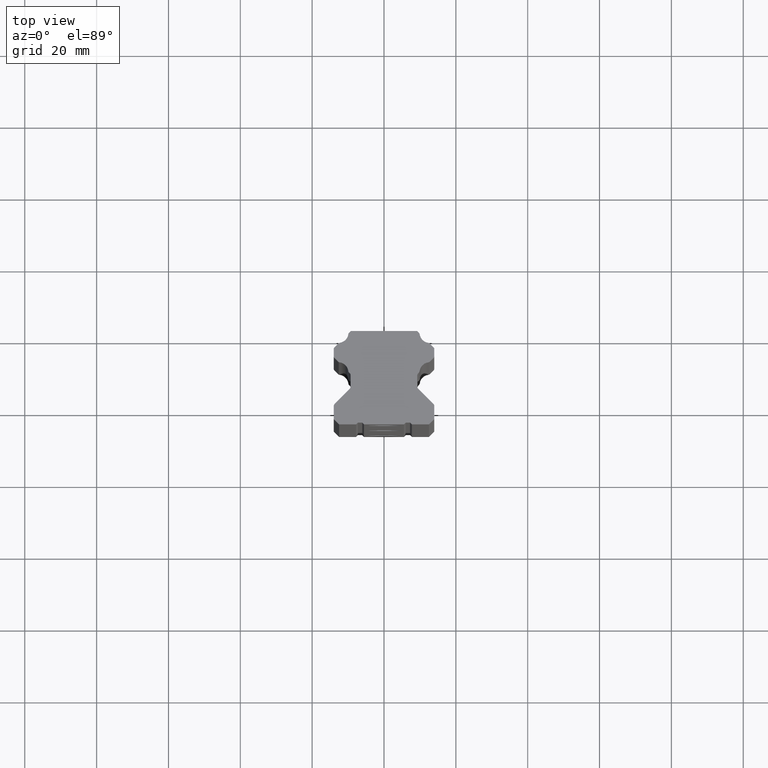
[diagram: clean part render]
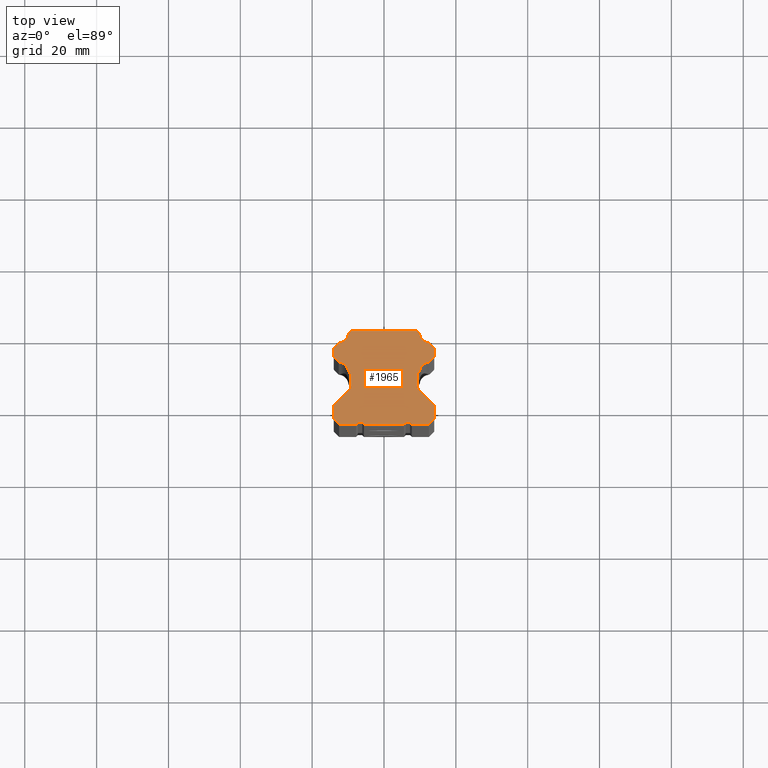
[diagram: same view with one face highlighted and labeled with its STEP entity id]
A machine part, top view. The second image highlights one B-rep face of the part: STEP entity #1965.
In plain terms, the highlighted planar face has unit normal (0, 0, 1).
Its self-contained STEP definition (entity closure, byte-faithful):
#10 = VERTEX_POINT ( 'NONE', #2247 ) ;
#28 = EDGE_CURVE ( 'NONE', #36, #2108, #547, .T. ) ;
#29 = EDGE_CURVE ( 'NONE', #2059, #254, #543, .T. ) ;
#36 = VERTEX_POINT ( 'NONE', #529 ) ;
#40 = VERTEX_POINT ( 'NONE', #527 ) ;
#46 = EDGE_CURVE ( 'NONE', #2060, #10, #583, .T. ) ;
#48 = VERTEX_POINT ( 'NONE', #575 ) ;
#52 = EDGE_CURVE ( 'NONE', #48, #53, #572, .T. ) ;
#53 = VERTEX_POINT ( 'NONE', #563 ) ;
#85 = EDGE_CURVE ( 'NONE', #2075, #2128, #647, .T. ) ;
#86 = EDGE_CURVE ( 'NONE', #2174, #2130, #638, .T. ) ;
#102 = VERTEX_POINT ( 'NONE', #672 ) ;
#107 = EDGE_CURVE ( 'NONE', #361, #102, #655, .T. ) ;
#118 = EDGE_CURVE ( 'NONE', #210, #159, #703, .T. ) ;
#126 = VERTEX_POINT ( 'NONE', #744 ) ;
#137 = EDGE_CURVE ( 'NONE', #2115, #145, #726, .T. ) ;
#145 = VERTEX_POINT ( 'NONE', #768 ) ;
#159 = VERTEX_POINT ( 'NONE', #750 ) ;
#164 = VERTEX_POINT ( 'NONE', #797 ) ;
#170 = EDGE_CURVE ( 'NONE', #173, #164, #785, .T. ) ;
#173 = VERTEX_POINT ( 'NONE', #780 ) ;
#204 = VERTEX_POINT ( 'NONE', #855 ) ;
#210 = VERTEX_POINT ( 'NONE', #906 ) ;
#214 = EDGE_CURVE ( 'NONE', #256, #126, #905, .T. ) ;
#215 = EDGE_CURVE ( 'NONE', #227, #204, #900, .T. ) ;
#227 = VERTEX_POINT ( 'NONE', #929 ) ;
#230 = VERTEX_POINT ( 'NONE', #928 ) ;
#254 = VERTEX_POINT ( 'NONE', #941 ) ;
#256 = VERTEX_POINT ( 'NONE', #940 ) ;
#260 = EDGE_CURVE ( 'NONE', #359, #361, #996, .T. ) ;
#264 = VERTEX_POINT ( 'NONE', #982 ) ;
#269 = VERTEX_POINT ( 'NONE', #975 ) ;
#270 = EDGE_CURVE ( 'NONE', #269, #2215, #974, .T. ) ;
#359 = VERTEX_POINT ( 'NONE', #1048 ) ;
#361 = VERTEX_POINT ( 'NONE', #1043 ) ;
#376 = EDGE_CURVE ( 'NONE', #2140, #2128, #1084, .T. ) ;
#389 = EDGE_CURVE ( 'NONE', #442, #254, #1065, .T. ) ;
#399 = EDGE_CURVE ( 'NONE', #145, #173, #1119, .T. ) ;
#407 = EDGE_CURVE ( 'NONE', #40, #10, #1105, .T. ) ;
#417 = ORIENTED_EDGE ( 'NONE', *, *, #2238, .F. ) ;
#419 = EDGE_CURVE ( 'NONE', #485, #496, #1157, .T. ) ;
#422 = EDGE_CURVE ( 'NONE', #164, #159, #1153, .T. ) ;
#431 = VERTEX_POINT ( 'NONE', #1134 ) ;
#433 = EDGE_CURVE ( 'NONE', #210, #431, #1133, .T. ) ;
#442 = VERTEX_POINT ( 'NONE', #1177 ) ;
#444 = EDGE_CURVE ( 'NONE', #431, #442, #1176, .T. ) ;
#448 = EDGE_CURVE ( 'NONE', #230, #126, #1166, .T. ) ;
#464 = EDGE_CURVE ( 'NONE', #1946, #48, #1207, .T. ) ;
#472 = EDGE_CURVE ( 'NONE', #53, #269, #1257, .T. ) ;
#479 = EDGE_CURVE ( 'NONE', #496, #264, #1243, .T. ) ;
#485 = VERTEX_POINT ( 'NONE', #1229 ) ;
#487 = EDGE_CURVE ( 'NONE', #36, #485, #1227, .T. ) ;
#496 = VERTEX_POINT ( 'NONE', #1272 ) ;
#527 = CARTESIAN_POINT ( 'NONE',  ( -5.549999999999876400, -25.99999999999987600, 100.0000000000000000 ) ) ;
#529 = CARTESIAN_POINT ( 'NONE',  ( 7.749999999999987600, -26.00000000000001400, 100.0000000000000000 ) ) ;
#540 = DIRECTION ( 'NONE',  ( -0.7071067811864976100, -0.7071067811865975300, 0.0000000000000000000 ) ) ;
#541 = VECTOR ( 'NONE', #540, 1000.000000000000100 ) ;
#542 = CARTESIAN_POINT ( 'NONE',  ( -7.750000000000000000, -26.00000000000000400, 100.0000000000000000 ) ) ;
#543 = LINE ( 'NONE', #542, #541 ) ;
#544 = DIRECTION ( 'NONE',  ( -0.7071067811864976100, 0.7071067811865975300, 0.0000000000000000000 ) ) ;
#545 = VECTOR ( 'NONE', #544, 1000.000000000000100 ) ;
#546 = CARTESIAN_POINT ( 'NONE',  ( 7.250000000000000000, -25.50000000000000400, 100.0000000000000000 ) ) ;
#547 = LINE ( 'NONE', #546, #545 ) ;
#563 = CARTESIAN_POINT ( 'NONE',  ( 9.300000000000000700, -15.52752949536000000, 100.0000000000000000 ) ) ;
#564 = DIRECTION ( 'NONE',  ( 1.000000000000000000, -4.336808689942015400E-015, 0.0000000000000000000 ) ) ;
#565 = DIRECTION ( 'NONE',  ( 0.0000000000000000000, 0.0000000000000000000, -1.000000000000000000 ) ) ;
#566 = CARTESIAN_POINT ( 'NONE',  ( 10.10000000000000000, -15.52752949536000000, 100.0000000000000000 ) ) ;
#567 = AXIS2_PLACEMENT_3D ( 'NONE', #566, #565, #564 ) ;
#572 = CIRCLE ( 'NONE', #567, 0.8000000000000003800 ) ;
#575 = CARTESIAN_POINT ( 'NONE',  ( 9.534314575050316900, -16.09321492031011400, 100.0000000000000000 ) ) ;
#580 = DIRECTION ( 'NONE',  ( -0.7071067811868975200, -0.7071067811861976300, 0.0000000000000000000 ) ) ;
#581 = VECTOR ( 'NONE', #580, 999.9999999999998900 ) ;
#582 = CARTESIAN_POINT ( 'NONE',  ( 5.549999999999999800, -26.00000000000000400, 100.0000000000000000 ) ) ;
#583 = LINE ( 'NONE', #582, #581 ) ;
#634 = DIRECTION ( 'NONE',  ( 1.000000000000000000, -7.228014483236698300E-015, 0.0000000000000000000 ) ) ;
#635 = DIRECTION ( 'NONE',  ( 0.0000000000000000000, 0.0000000000000000000, -1.000000000000000000 ) ) ;
#636 = CARTESIAN_POINT ( 'NONE',  ( 13.40000000000000000, -4.992697616536999800, 100.0000000000000000 ) ) ;
#637 = AXIS2_PLACEMENT_3D ( 'NONE', #636, #635, #634 ) ;
#638 = CIRCLE ( 'NONE', #637, 0.5999999999999998700 ) ;
#639 = DIRECTION ( 'NONE',  ( 1.000000000000000000, 0.0000000000000000000, 0.0000000000000000000 ) ) ;
#640 = DIRECTION ( 'NONE',  ( 0.0000000000000000000, 0.0000000000000000000, -1.000000000000000000 ) ) ;
#641 = CARTESIAN_POINT ( 'NONE',  ( 12.29871090410999900, -8.114441503669999300, 100.0000000000000000 ) ) ;
#642 = AXIS2_PLACEMENT_3D ( 'NONE', #641, #640, #639 ) ;
#647 = CIRCLE ( 'NONE', #642, 0.5999999999999998700 ) ;
#652 = DIRECTION ( 'NONE',  ( 0.0000000000000000000, 0.0000000000000000000, -1.000000000000000000 ) ) ;
#653 = CARTESIAN_POINT ( 'NONE',  ( -13.40000000000000000, -7.013152407777999600, 100.0000000000000000 ) ) ;
#654 = AXIS2_PLACEMENT_3D ( 'NONE', #653, #652, #714 ) ;
#655 = CIRCLE ( 'NONE', #654, 0.5999999999999998700 ) ;
#672 = CARTESIAN_POINT ( 'NONE',  ( -14.00000000000000000, -7.013152407777500500, 100.0000000000000000 ) ) ;
#699 = DIRECTION ( 'NONE',  ( 1.000000000000000000, -4.336808689942015400E-015, 0.0000000000000000000 ) ) ;
#700 = DIRECTION ( 'NONE',  ( 0.0000000000000000000, 0.0000000000000000000, -1.000000000000000000 ) ) ;
#701 = CARTESIAN_POINT ( 'NONE',  ( -13.19999999999999900, -20.89027119516000000, 100.0000000000000000 ) ) ;
#702 = AXIS2_PLACEMENT_3D ( 'NONE', #701, #700, #699 ) ;
#703 = CIRCLE ( 'NONE', #702, 0.8000000000000003800 ) ;
#714 = DIRECTION ( 'NONE',  ( 1.000000000000000000, 0.0000000000000000000, 0.0000000000000000000 ) ) ;
#719 = CARTESIAN_POINT ( 'NONE',  ( 0.0000000000000000000, -26.00000000000000400, 100.0000000000000000 ) ) ;
#722 = DIRECTION ( 'NONE',  ( 1.000000000000000000, 8.673617379884030700E-015, 0.0000000000000000000 ) ) ;
#723 = DIRECTION ( 'NONE',  ( 0.0000000000000000000, 0.0000000000000000000, -1.000000000000000000 ) ) ;
#724 = CARTESIAN_POINT ( 'NONE',  ( -10.10000000000000000, -12.29305139509999900, 100.0000000000000000 ) ) ;
#725 = AXIS2_PLACEMENT_3D ( 'NONE', #724, #723, #722 ) ;
#726 = CIRCLE ( 'NONE', #725, 0.8000000000000003800 ) ;
#744 = CARTESIAN_POINT ( 'NONE',  ( -9.918833972544202700, -11.16449842829915300, 100.0000000000000000 ) ) ;
#750 = CARTESIAN_POINT ( 'NONE',  ( -13.76568542495043300, -20.32458577020963000, 100.0000000000000000 ) ) ;
#768 = CARTESIAN_POINT ( 'NONE',  ( -9.300000000000000700, -12.29305139509999900, 100.0000000000000000 ) ) ;
#780 = CARTESIAN_POINT ( 'NONE',  ( -9.300000000000000700, -15.52752949536500000, 100.0000000000000000 ) ) ;
#781 = DIRECTION ( 'NONE',  ( 1.000000000000000000, 0.0000000000000000000, 0.0000000000000000000 ) ) ;
#782 = DIRECTION ( 'NONE',  ( 0.0000000000000000000, 0.0000000000000000000, -1.000000000000000000 ) ) ;
#783 = CARTESIAN_POINT ( 'NONE',  ( -10.10000000000000000, -15.52752949536000000, 100.0000000000000000 ) ) ;
#784 = AXIS2_PLACEMENT_3D ( 'NONE', #783, #782, #781 ) ;
#785 = CIRCLE ( 'NONE', #784, 0.8000000000000003800 ) ;
#797 = CARTESIAN_POINT ( 'NONE',  ( -9.534314575050718300, -16.09321492030972000, 100.0000000000000000 ) ) ;
#855 = CARTESIAN_POINT ( 'NONE',  ( -12.71655658728175800, -3.460726066391830900, 100.0000000000000000 ) ) ;
#897 = DIRECTION ( 'NONE',  ( 0.7071067811863974700, 0.7071067811866975600, 0.0000000000000000000 ) ) ;
#898 = VECTOR ( 'NONE', #897, 1000.000000000000100 ) ;
#899 = CARTESIAN_POINT ( 'NONE',  ( -12.71655658727999900, -3.460726066391000400, 100.0000000000000000 ) ) ;
#900 = LINE ( 'NONE', #899, #898 ) ;
#901 = DIRECTION ( 'NONE',  ( 1.000000000000000000, -2.891205793294679000E-015, 0.0000000000000000000 ) ) ;
#902 = DIRECTION ( 'NONE',  ( 0.0000000000000000000, 0.0000000000000000000, -1.000000000000000000 ) ) ;
#903 = CARTESIAN_POINT ( 'NONE',  ( -9.323523503669999700, -11.08962890411000000, 100.0000000000000000 ) ) ;
#904 = AXIS2_PLACEMENT_3D ( 'NONE', #903, #902, #901 ) ;
#905 = CIRCLE ( 'NONE', #904, 0.5999999999999998700 ) ;
#906 = CARTESIAN_POINT ( 'NONE',  ( -14.00000000000000000, -20.89027119516000000, 100.0000000000000000 ) ) ;
#928 = CARTESIAN_POINT ( 'NONE',  ( -12.37358042829977300, -8.709751972544125900, 100.0000000000000000 ) ) ;
#929 = CARTESIAN_POINT ( 'NONE',  ( -13.82426406871189100, -4.568433547824199100, 100.0000000000000000 ) ) ;
#940 = CARTESIAN_POINT ( 'NONE',  ( -9.747787572381758600, -11.51389297282117000, 100.0000000000000000 ) ) ;
#941 = CARTESIAN_POINT ( 'NONE',  ( -7.750000000000000900, -26.00000000000000400, 100.0000000000000000 ) ) ;
#970 = DIRECTION ( 'NONE',  ( 1.000000000000000000, 0.0000000000000000000, 0.0000000000000000000 ) ) ;
#971 = DIRECTION ( 'NONE',  ( 0.0000000000000000000, 0.0000000000000000000, -1.000000000000000000 ) ) ;
#972 = CARTESIAN_POINT ( 'NONE',  ( 10.10000000000000000, -12.29305139509999900, 100.0000000000000000 ) ) ;
#973 = AXIS2_PLACEMENT_3D ( 'NONE', #972, #971, #970 ) ;
#974 = CIRCLE ( 'NONE', #973, 0.8000000000000003800 ) ;
#975 = CARTESIAN_POINT ( 'NONE',  ( 9.299999999999773300, -12.29305139509999900, 100.0000000000000000 ) ) ;
#982 = CARTESIAN_POINT ( 'NONE',  ( 14.00000000000000000, -20.89027119516000000, 100.0000000000000000 ) ) ;
#993 = DIRECTION ( 'NONE',  ( -0.7071067811863974700, 0.7071067811866975600, 0.0000000000000000000 ) ) ;
#994 = VECTOR ( 'NONE', #993, 1000.000000000000100 ) ;
#995 = CARTESIAN_POINT ( 'NONE',  ( -13.82426406871000100, -7.437416476490000200, 100.0000000000000000 ) ) ;
#996 = LINE ( 'NONE', #995, #994 ) ;
#1043 = CARTESIAN_POINT ( 'NONE',  ( -13.82426406871100800, -7.437416476489919300, 100.0000000000000000 ) ) ;
#1048 = CARTESIAN_POINT ( 'NONE',  ( -12.72297497282062700, -8.538705572381534400, 100.0000000000000000 ) ) ;
#1065 = LINE ( 'NONE', #1131, #1130 ) ;
#1080 = DIRECTION ( 'NONE',  ( 1.000000000000000000, 0.0000000000000000000, 0.0000000000000000000 ) ) ;
#1081 = DIRECTION ( 'NONE',  ( 0.0000000000000000000, 0.0000000000000000000, -1.000000000000000000 ) ) ;
#1082 = CARTESIAN_POINT ( 'NONE',  ( 12.72671501738999900, -11.51763301739000100, 100.0000000000000000 ) ) ;
#1083 = AXIS2_PLACEMENT_3D ( 'NONE', #1082, #1081, #1080 ) ;
#1084 = CIRCLE ( 'NONE', #1083, 2.829999999999999200 ) ;
#1102 = DIRECTION ( 'NONE',  ( 1.000000000000000000, 0.0000000000000000000, 0.0000000000000000000 ) ) ;
#1103 = VECTOR ( 'NONE', #1102, 1000.000000000000000 ) ;
#1104 = CARTESIAN_POINT ( 'NONE',  ( 0.0000000000000000000, -26.00000000000000400, 100.0000000000000000 ) ) ;
#1105 = LINE ( 'NONE', #1104, #1103 ) ;
#1116 = DIRECTION ( 'NONE',  ( 0.0000000000000000000, -1.000000000000000000, 0.0000000000000000000 ) ) ;
#1117 = VECTOR ( 'NONE', #1116, 1000.000000000000000 ) ;
#1118 = CARTESIAN_POINT ( 'NONE',  ( -9.300000000000000700, 0.0000000000000000000, 100.0000000000000000 ) ) ;
#1119 = LINE ( 'NONE', #1118, #1117 ) ;
#1129 = DIRECTION ( 'NONE',  ( 1.000000000000000000, 0.0000000000000000000, 0.0000000000000000000 ) ) ;
#1130 = VECTOR ( 'NONE', #1129, 1000.000000000000000 ) ;
#1131 = CARTESIAN_POINT ( 'NONE',  ( 0.0000000000000000000, -26.00000000000000400, 100.0000000000000000 ) ) ;
#1132 = CARTESIAN_POINT ( 'NONE',  ( -14.00000000000000000, 0.0000000000000000000, 100.0000000000000000 ) ) ;
#1133 = LINE ( 'NONE', #1132, #1194 ) ;
#1134 = CARTESIAN_POINT ( 'NONE',  ( -14.00000000000005000, -24.49999999999994700, 100.0000000000000900 ) ) ;
#1150 = DIRECTION ( 'NONE',  ( -0.7071067811864639700, -0.7071067811866310600, 0.0000000000000000000 ) ) ;
#1151 = VECTOR ( 'NONE', #1150, 1000.000000000000100 ) ;
#1152 = CARTESIAN_POINT ( 'NONE',  ( -9.534314575051000800, -16.09321492031000000, 100.0000000000000000 ) ) ;
#1153 = LINE ( 'NONE', #1152, #1151 ) ;
#1154 = DIRECTION ( 'NONE',  ( 0.7071067811865471300, 0.7071067811865479100, 0.0000000000000000000 ) ) ;
#1155 = VECTOR ( 'NONE', #1154, 1000.000000000000000 ) ;
#1156 = CARTESIAN_POINT ( 'NONE',  ( 12.50000000000000000, -26.00000000000000400, 100.0000000000000000 ) ) ;
#1157 = LINE ( 'NONE', #1156, #1155 ) ;
#1162 = DIRECTION ( 'NONE',  ( 1.000000000000000000, 6.129764932780239200E-016, 0.0000000000000000000 ) ) ;
#1163 = DIRECTION ( 'NONE',  ( 0.0000000000000000000, 0.0000000000000000000, -1.000000000000000000 ) ) ;
#1164 = CARTESIAN_POINT ( 'NONE',  ( -12.72671501738999900, -11.51763301739000100, 100.0000000000000000 ) ) ;
#1165 = AXIS2_PLACEMENT_3D ( 'NONE', #1164, #1163, #1162 ) ;
#1166 = CIRCLE ( 'NONE', #1165, 2.829999999999999200 ) ;
#1173 = DIRECTION ( 'NONE',  ( 0.7071067811865471300, -0.7071067811865479100, 0.0000000000000000000 ) ) ;
#1174 = VECTOR ( 'NONE', #1173, 1000.000000000000000 ) ;
#1175 = CARTESIAN_POINT ( 'NONE',  ( -14.00000000000000000, -24.50000000000000000, 100.0000000000000000 ) ) ;
#1176 = LINE ( 'NONE', #1175, #1174 ) ;
#1177 = CARTESIAN_POINT ( 'NONE',  ( -12.50000000000000000, -26.00000000000000400, 100.0000000000000600 ) ) ;
#1193 = DIRECTION ( 'NONE',  ( 0.0000000000000000000, -1.000000000000000000, 0.0000000000000000000 ) ) ;
#1194 = VECTOR ( 'NONE', #1193, 1000.000000000000000 ) ;
#1204 = DIRECTION ( 'NONE',  ( -0.7071067811864639700, 0.7071067811866310600, 0.0000000000000000000 ) ) ;
#1205 = VECTOR ( 'NONE', #1204, 1000.000000000000100 ) ;
#1206 = CARTESIAN_POINT ( 'NONE',  ( 13.76568542495000000, -20.32458577021000000, 100.0000000000000000 ) ) ;
#1207 = LINE ( 'NONE', #1206, #1205 ) ;
#1227 = LINE ( 'NONE', #719, #2249 ) ;
#1229 = CARTESIAN_POINT ( 'NONE',  ( 12.50000000000000000, -26.00000000000000400, 100.0000000000000000 ) ) ;
#1240 = DIRECTION ( 'NONE',  ( 0.0000000000000000000, 1.000000000000000000, 0.0000000000000000000 ) ) ;
#1241 = VECTOR ( 'NONE', #1240, 1000.000000000000000 ) ;
#1242 = CARTESIAN_POINT ( 'NONE',  ( 14.00000000000000000, 0.0000000000000000000, 100.0000000000000000 ) ) ;
#1243 = LINE ( 'NONE', #1242, #1241 ) ;
#1254 = DIRECTION ( 'NONE',  ( 0.0000000000000000000, 1.000000000000000000, 0.0000000000000000000 ) ) ;
#1255 = VECTOR ( 'NONE', #1254, 1000.000000000000000 ) ;
#1256 = CARTESIAN_POINT ( 'NONE',  ( 9.300000000000000700, 0.0000000000000000000, 100.0000000000000000 ) ) ;
#1257 = LINE ( 'NONE', #1256, #1255 ) ;
#1259 = CARTESIAN_POINT ( 'NONE',  ( -6.049999999999999800, -25.50000000000000400, 100.0000000000000000 ) ) ;
#1260 = LINE ( 'NONE', #1259, #1322 ) ;
#1267 = DIRECTION ( 'NONE',  ( 1.000000000000000000, 8.673617379884030700E-015, 0.0000000000000000000 ) ) ;
#1268 = DIRECTION ( 'NONE',  ( 0.0000000000000000000, 0.0000000000000000000, -1.000000000000000000 ) ) ;
#1269 = CARTESIAN_POINT ( 'NONE',  ( 13.19999999999999900, -20.89027119516000000, 100.0000000000000000 ) ) ;
#1270 = AXIS2_PLACEMENT_3D ( 'NONE', #1269, #1268, #1267 ) ;
#1271 = CIRCLE ( 'NONE', #1270, 0.8000000000000003800 ) ;
#1272 = CARTESIAN_POINT ( 'NONE',  ( 14.00000000000000000, -24.50000000000000000, 100.0000000000000000 ) ) ;
#1292 = CARTESIAN_POINT ( 'NONE',  ( -9.255830520886904700, -3.790183202629287200E-014, 100.0000000000000000 ) ) ;
#1293 = DIRECTION ( 'NONE',  ( -0.7071067811864125700, -0.7071067811866824600, 0.0000000000000000000 ) ) ;
#1294 = VECTOR ( 'NONE', #1293, 1000.000000000000000 ) ;
#1295 = CARTESIAN_POINT ( 'NONE',  ( -9.255830520887002400, -1.136978062868999900E-013, 100.0000000000000000 ) ) ;
#1296 = LINE ( 'NONE', #1295, #1294 ) ;
#1301 = DIRECTION ( 'NONE',  ( 1.000000000000000000, 0.0000000000000000000, 0.0000000000000000000 ) ) ;
#1302 = DIRECTION ( 'NONE',  ( 0.0000000000000000000, 0.0000000000000000000, 1.000000000000000000 ) ) ;
#1303 = CARTESIAN_POINT ( 'NONE',  ( 0.0000000000000000000, 0.0000000000000000000, 100.0000000000000000 ) ) ;
#1304 = AXIS2_PLACEMENT_3D ( 'NONE', #1303, #1302, #1301 ) ;
#1305 = PLANE ( 'NONE',  #1304 ) ;
#1306 = FACE_OUTER_BOUND ( 'NONE', #1919, .T. ) ;
#1319 = CARTESIAN_POINT ( 'NONE',  ( 13.76568542495003400, -20.32458577021003500, 100.0000000000000000 ) ) ;
#1321 = DIRECTION ( 'NONE',  ( -0.7071067811868975200, 0.7071067811861976300, 0.0000000000000000000 ) ) ;
#1322 = VECTOR ( 'NONE', #1321, 999.9999999999998900 ) ;
#1335 = DIRECTION ( 'NONE',  ( 0.7071067811863974700, -0.7071067811866975600, 0.0000000000000000000 ) ) ;
#1336 = VECTOR ( 'NONE', #1335, 1000.000000000000100 ) ;
#1337 = CARTESIAN_POINT ( 'NONE',  ( 9.748600933609001400, -0.4927704127227000000, 100.0000000000000000 ) ) ;
#1338 = LINE ( 'NONE', #1337, #1336 ) ;
#1339 = DIRECTION ( 'NONE',  ( 1.000000000000000000, 1.228414886632000000E-014, 0.0000000000000000000 ) ) ;
#1340 = VECTOR ( 'NONE', #1339, 1000.000000000000000 ) ;
#1341 = CARTESIAN_POINT ( 'NONE',  ( 9.255830520887002400, 1.137000000000000100E-013, 100.0000000000000000 ) ) ;
#1342 = LINE ( 'NONE', #1341, #1340 ) ;
#1343 = CARTESIAN_POINT ( 'NONE',  ( 9.255830520886851400, -3.790926987523308900E-014, 100.0000000000000000 ) ) ;
#1378 = DIRECTION ( 'NONE',  ( 0.0000000000000000000, 1.000000000000000000, 0.0000000000000000000 ) ) ;
#1379 = VECTOR ( 'NONE', #1378, 1000.000000000000000 ) ;
#1380 = CARTESIAN_POINT ( 'NONE',  ( 14.00000000000000000, 0.0000000000000000000, 100.0000000000000000 ) ) ;
#1381 = LINE ( 'NONE', #1380, #1379 ) ;
#1427 = DIRECTION ( 'NONE',  ( 1.000000000000000000, 0.0000000000000000000, 0.0000000000000000000 ) ) ;
#1428 = DIRECTION ( 'NONE',  ( 0.0000000000000000000, 0.0000000000000000000, -1.000000000000000000 ) ) ;
#1429 = CARTESIAN_POINT ( 'NONE',  ( 12.72671501738999900, -0.4826119826072999800, 100.0000000000000000 ) ) ;
#1430 = AXIS2_PLACEMENT_3D ( 'NONE', #1429, #1428, #1427 ) ;
#1431 = CIRCLE ( 'NONE', #1430, 2.829999999999999200 ) ;
#1458 = CARTESIAN_POINT ( 'NONE',  ( 12.72297497282046500, -8.538705572381964300, 100.0000000000000000 ) ) ;
#1473 = CARTESIAN_POINT ( 'NONE',  ( -12.36828479241294200, -3.289821945158745800, 100.0000000000000000 ) ) ;
#1475 = CARTESIAN_POINT ( 'NONE',  ( 13.82426406871146300, -7.437416476489963700, 100.0000000000000000 ) ) ;
#1477 = CARTESIAN_POINT ( 'NONE',  ( 6.050000000000125100, -25.50000000000012800, 100.0000000000000000 ) ) ;
#1478 = CARTESIAN_POINT ( 'NONE',  ( -7.250000000000008900, -25.49999999999999600, 100.0000000000000000 ) ) ;
#1483 = DIRECTION ( 'NONE',  ( -0.7071067811865474600, -0.7071067811865474600, 0.0000000000000000000 ) ) ;
#1484 = VECTOR ( 'NONE', #1483, 1000.000000000000100 ) ;
#1485 = CARTESIAN_POINT ( 'NONE',  ( 12.72297497281999900, -8.538705572380999700, 100.0000000000001100 ) ) ;
#1486 = LINE ( 'NONE', #1485, #1484 ) ;
#1498 = DIRECTION ( 'NONE',  ( 0.7071067811865474600, -0.7071067811865474600, 0.0000000000000000000 ) ) ;
#1499 = VECTOR ( 'NONE', #1498, 1000.000000000000100 ) ;
#1500 = CARTESIAN_POINT ( 'NONE',  ( 13.82426406871000100, -4.568433547825000200, 100.0000000000001100 ) ) ;
#1501 = LINE ( 'NONE', #1500, #1499 ) ;
#1502 = CARTESIAN_POINT ( 'NONE',  ( 12.36828479241356900, -3.289821945158825300, 100.0000000000000000 ) ) ;
#1519 = DIRECTION ( 'NONE',  ( -1.000000000000000000, 0.0000000000000000000, 0.0000000000000000000 ) ) ;
#1520 = VECTOR ( 'NONE', #1519, 1000.000000000000000 ) ;
#1521 = CARTESIAN_POINT ( 'NONE',  ( 6.049999999999999800, -25.50000000000000400, 100.0000000000000000 ) ) ;
#1522 = LINE ( 'NONE', #1521, #1520 ) ;
#1527 = DIRECTION ( 'NONE',  ( 1.000000000000000000, -1.084202172485504700E-014, 0.0000000000000000000 ) ) ;
#1528 = DIRECTION ( 'NONE',  ( 0.0000000000000000000, 0.0000000000000000000, -1.000000000000000000 ) ) ;
#1529 = CARTESIAN_POINT ( 'NONE',  ( -12.29229251856999900, -3.884990135103000100, 100.0000000000000000 ) ) ;
#1530 = AXIS2_PLACEMENT_3D ( 'NONE', #1529, #1528, #1527 ) ;
#1531 = CIRCLE ( 'NONE', #1530, 0.5999999999999998700 ) ;
#1552 = CARTESIAN_POINT ( 'NONE',  ( -9.534314575051091400, -11.72736597015071200, 100.0000000000000000 ) ) ;
#1565 = DIRECTION ( 'NONE',  ( -0.7071067811863974700, 0.7071067811866975600, 0.0000000000000000000 ) ) ;
#1566 = VECTOR ( 'NONE', #1565, 1000.000000000000100 ) ;
#1567 = CARTESIAN_POINT ( 'NONE',  ( -9.747787572382000200, -11.51389297282000100, 100.0000000000000000 ) ) ;
#1568 = LINE ( 'NONE', #1567, #1566 ) ;
#1569 = CARTESIAN_POINT ( 'NONE',  ( 7.250000000000000000, -25.50000000000000400, 100.0000000000000000 ) ) ;
#1579 = CARTESIAN_POINT ( 'NONE',  ( 9.918833972544126400, -11.16449842829977300, 100.0000000000000000 ) ) ;
#1580 = CARTESIAN_POINT ( 'NONE',  ( 14.00000000000000000, -7.013152407779999800, 100.0000000000000000 ) ) ;
#1595 = CARTESIAN_POINT ( 'NONE',  ( 14.00000000000000000, -4.992697616536999800, 100.0000000000000000 ) ) ;
#1596 = CARTESIAN_POINT ( 'NONE',  ( 12.37358042829921300, -8.709751972544197000, 100.0000000000000000 ) ) ;
#1597 = CARTESIAN_POINT ( 'NONE',  ( -14.00000000000000000, -4.992697616538500000, 100.0000000000000000 ) ) ;
#1598 = DIRECTION ( 'NONE',  ( 1.000000000000000000, 0.0000000000000000000, 0.0000000000000000000 ) ) ;
#1599 = DIRECTION ( 'NONE',  ( 0.0000000000000000000, 0.0000000000000000000, -1.000000000000000000 ) ) ;
#1600 = CARTESIAN_POINT ( 'NONE',  ( -12.29871090410999900, -8.114441503669999300, 100.0000000000000000 ) ) ;
#1601 = AXIS2_PLACEMENT_3D ( 'NONE', #1600, #1599, #1598 ) ;
#1602 = CIRCLE ( 'NONE', #1601, 0.5999999999999998700 ) ;
#1603 = DIRECTION ( 'NONE',  ( 1.000000000000000000, -5.782411586589358000E-015, 0.0000000000000000000 ) ) ;
#1604 = DIRECTION ( 'NONE',  ( 0.0000000000000000000, 0.0000000000000000000, -1.000000000000000000 ) ) ;
#1605 = CARTESIAN_POINT ( 'NONE',  ( -13.40000000000000000, -4.992697616536999800, 100.0000000000000000 ) ) ;
#1606 = AXIS2_PLACEMENT_3D ( 'NONE', #1605, #1604, #1603 ) ;
#1607 = CIRCLE ( 'NONE', #1606, 0.5999999999999998700 ) ;
#1608 = CIRCLE ( 'NONE', #1672, 0.5999999999999998700 ) ;
#1612 = CARTESIAN_POINT ( 'NONE',  ( 13.40000000000000000, -7.013152407777999600, 100.0000000000000000 ) ) ;
#1652 = DIRECTION ( 'NONE',  ( 1.000000000000000000, 0.0000000000000000000, 0.0000000000000000000 ) ) ;
#1653 = DIRECTION ( 'NONE',  ( 0.0000000000000000000, 0.0000000000000000000, -1.000000000000000000 ) ) ;
#1654 = CARTESIAN_POINT ( 'NONE',  ( 9.323523503669999700, -11.08962890411000000, 100.0000000000000000 ) ) ;
#1655 = AXIS2_PLACEMENT_3D ( 'NONE', #1654, #1653, #1652 ) ;
#1656 = CIRCLE ( 'NONE', #1655, 0.5999999999999998700 ) ;
#1670 = DIRECTION ( 'NONE',  ( 1.000000000000000000, 0.0000000000000000000, 0.0000000000000000000 ) ) ;
#1671 = DIRECTION ( 'NONE',  ( 0.0000000000000000000, 0.0000000000000000000, -1.000000000000000000 ) ) ;
#1672 = AXIS2_PLACEMENT_3D ( 'NONE', #1612, #1671, #1670 ) ;
#1676 = CARTESIAN_POINT ( 'NONE',  ( 12.29229251856999900, -3.884990135103000100, 100.0000000000000000 ) ) ;
#1678 = DIRECTION ( 'NONE',  ( -1.000000000000000000, 0.0000000000000000000, 0.0000000000000000000 ) ) ;
#1679 = VECTOR ( 'NONE', #1678, 1000.000000000000000 ) ;
#1680 = CARTESIAN_POINT ( 'NONE',  ( -7.250000000000000000, -25.50000000000000400, 100.0000000000000000 ) ) ;
#1681 = LINE ( 'NONE', #1680, #1679 ) ;
#1700 = CARTESIAN_POINT ( 'NONE',  ( 13.82426406871096500, -4.568433547825035700, 100.0000000000000000 ) ) ;
#1715 = DIRECTION ( 'NONE',  ( -0.7071067811872975300, -0.7071067811857975100, 0.0000000000000000000 ) ) ;
#1716 = VECTOR ( 'NONE', #1715, 1000.000000000000000 ) ;
#1717 = CARTESIAN_POINT ( 'NONE',  ( 9.534314575051000800, -11.72736597015000000, 100.0000000000000000 ) ) ;
#1718 = LINE ( 'NONE', #1717, #1716 ) ;
#1723 = CARTESIAN_POINT ( 'NONE',  ( 9.747787572381600500, -11.51389297282105400, 100.0000000000000000 ) ) ;
#1724 = DIRECTION ( 'NONE',  ( 1.000000000000000000, 0.0000000000000000000, 0.0000000000000000000 ) ) ;
#1725 = DIRECTION ( 'NONE',  ( 0.0000000000000000000, 0.0000000000000000000, -1.000000000000000000 ) ) ;
#1726 = CARTESIAN_POINT ( 'NONE',  ( -12.72671501738999900, -0.4826119826072999800, 100.0000000000000000 ) ) ;
#1727 = AXIS2_PLACEMENT_3D ( 'NONE', #1726, #1725, #1724 ) ;
#1728 = CIRCLE ( 'NONE', #1727, 2.829999999999999200 ) ;
#1729 = CARTESIAN_POINT ( 'NONE',  ( -9.748600933609525400, -0.4927704127229057800, 100.0000000000000000 ) ) ;
#1731 = DIRECTION ( 'NONE',  ( 1.000000000000000000, -8.673617379884037000E-015, 0.0000000000000000000 ) ) ;
#1732 = DIRECTION ( 'NONE',  ( 0.0000000000000000000, 0.0000000000000000000, -1.000000000000000000 ) ) ;
#1733 = AXIS2_PLACEMENT_3D ( 'NONE', #1676, #1732, #1731 ) ;
#1734 = CIRCLE ( 'NONE', #1733, 0.5999999999999998700 ) ;
#1742 = DIRECTION ( 'NONE',  ( 1.000000000000000000, 0.0000000000000000000, 0.0000000000000000000 ) ) ;
#1743 = DIRECTION ( 'NONE',  ( 0.0000000000000000000, 0.0000000000000000000, 1.000000000000000000 ) ) ;
#1744 = CARTESIAN_POINT ( 'NONE',  ( 9.324336864897000900, -0.9170344814348000400, 100.0000000000000000 ) ) ;
#1745 = AXIS2_PLACEMENT_3D ( 'NONE', #1744, #1743, #1742 ) ;
#1746 = CIRCLE ( 'NONE', #1745, 0.5999999999999998700 ) ;
#1747 = CARTESIAN_POINT ( 'NONE',  ( 9.748600933608520000, -0.4927704127222198900, 100.0000000000000000 ) ) ;
#1748 = CARTESIAN_POINT ( 'NONE',  ( 9.534314575050681000, -11.72736597015058100, 100.0000000000000000 ) ) ;
#1771 = CARTESIAN_POINT ( 'NONE',  ( 9.919505054839776300, -0.8410422075871117900, 100.0000000000000000 ) ) ;
#1772 = DIRECTION ( 'NONE',  ( 0.0000000000000000000, -1.000000000000000000, 0.0000000000000000000 ) ) ;
#1773 = VECTOR ( 'NONE', #1772, 1000.000000000000000 ) ;
#1774 = CARTESIAN_POINT ( 'NONE',  ( -14.00000000000000000, 0.0000000000000000000, 100.0000000000000000 ) ) ;
#1779 = LINE ( 'NONE', #1774, #1773 ) ;
#1799 = CARTESIAN_POINT ( 'NONE',  ( -9.919505054839767400, -0.8410422075868244600, 100.0000000000000000 ) ) ;
#1801 = CARTESIAN_POINT ( 'NONE',  ( -6.050000000000001600, -25.50000000000000400, 100.0000000000000000 ) ) ;
#1810 = CARTESIAN_POINT ( 'NONE',  ( 12.71655658727996400, -3.460726066392035200, 100.0000000000000000 ) ) ;
#1819 = DIRECTION ( 'NONE',  ( 1.000000000000000000, 2.710505431213761900E-015, 0.0000000000000000000 ) ) ;
#1820 = DIRECTION ( 'NONE',  ( 0.0000000000000000000, 0.0000000000000000000, -1.000000000000000000 ) ) ;
#1821 = CARTESIAN_POINT ( 'NONE',  ( -9.324336864897000900, -0.9170344814344000300, 100.0000000000000000 ) ) ;
#1822 = AXIS2_PLACEMENT_3D ( 'NONE', #1821, #1820, #1819 ) ;
#1827 = CIRCLE ( 'NONE', #1822, 0.5999999999999998700 ) ;
#1914 = EDGE_CURVE ( 'NONE', #1946, #264, #1271, .T. ) ;
#1918 = ORIENTED_EDGE ( 'NONE', *, *, #86, .F. ) ;
#1919 = EDGE_LOOP ( 'NONE', ( #1918, #1926, #1927, #1922, #1977, #1986, #1973, #1975, #417, #1935, #1934, #1932, #1933, #1930, #1929, #1928, #1931, #1925, #1924, #1948, #1940, #1941, #1942, #1943, #1944, #1945, #1939, #1936, #1938, #1953, #1954, #1955, #1956, #1957, #1949, #1950, #1951, #1952, #1998, #1997, #1987, #1989, #1995, #1994, #1991, #1992, #1990, #1996, #1999, #2019 ) ) ;
#1921 = EDGE_CURVE ( 'NONE', #40, #2261, #1260, .T. ) ;
#1922 = ORIENTED_EDGE ( 'NONE', *, *, #2052, .T. ) ;
#1924 = ORIENTED_EDGE ( 'NONE', *, *, #214, .F. ) ;
#1925 = ORIENTED_EDGE ( 'NONE', *, *, #448, .T. ) ;
#1926 = ORIENTED_EDGE ( 'NONE', *, *, #2084, .F. ) ;
#1927 = ORIENTED_EDGE ( 'NONE', *, *, #2184, .F. ) ;
#1928 = ORIENTED_EDGE ( 'NONE', *, *, #260, .F. ) ;
#1929 = ORIENTED_EDGE ( 'NONE', *, *, #107, .F. ) ;
#1930 = ORIENTED_EDGE ( 'NONE', *, *, #2232, .T. ) ;
#1931 = ORIENTED_EDGE ( 'NONE', *, *, #2121, .F. ) ;
#1932 = ORIENTED_EDGE ( 'NONE', *, *, #215, .F. ) ;
#1933 = ORIENTED_EDGE ( 'NONE', *, *, #2120, .F. ) ;
#1934 = ORIENTED_EDGE ( 'NONE', *, *, #2099, .F. ) ;
#1935 = ORIENTED_EDGE ( 'NONE', *, *, #2194, .T. ) ;
#1936 = ORIENTED_EDGE ( 'NONE', *, *, #389, .T. ) ;
#1938 = ORIENTED_EDGE ( 'NONE', *, *, #29, .F. ) ;
#1939 = ORIENTED_EDGE ( 'NONE', *, *, #444, .T. ) ;
#1940 = ORIENTED_EDGE ( 'NONE', *, *, #137, .T. ) ;
#1941 = ORIENTED_EDGE ( 'NONE', *, *, #399, .T. ) ;
#1942 = ORIENTED_EDGE ( 'NONE', *, *, #170, .T. ) ;
#1943 = ORIENTED_EDGE ( 'NONE', *, *, #422, .T. ) ;
#1944 = ORIENTED_EDGE ( 'NONE', *, *, #118, .F. ) ;
#1945 = ORIENTED_EDGE ( 'NONE', *, *, #433, .T. ) ;
#1946 = VERTEX_POINT ( 'NONE', #1319 ) ;
#1948 = ORIENTED_EDGE ( 'NONE', *, *, #2111, .F. ) ;
#1949 = ORIENTED_EDGE ( 'NONE', *, *, #28, .F. ) ;
#1950 = ORIENTED_EDGE ( 'NONE', *, *, #487, .T. ) ;
#1951 = ORIENTED_EDGE ( 'NONE', *, *, #419, .T. ) ;
#1952 = ORIENTED_EDGE ( 'NONE', *, *, #479, .T. ) ;
#1953 = ORIENTED_EDGE ( 'NONE', *, *, #2182, .F. ) ;
#1954 = ORIENTED_EDGE ( 'NONE', *, *, #1921, .F. ) ;
#1955 = ORIENTED_EDGE ( 'NONE', *, *, #407, .T. ) ;
#1956 = ORIENTED_EDGE ( 'NONE', *, *, #46, .F. ) ;
#1957 = ORIENTED_EDGE ( 'NONE', *, *, #2104, .F. ) ;
#1965 = ADVANCED_FACE ( 'NONE', ( #1306 ), #1305, .T. ) ;
#1970 = EDGE_CURVE ( 'NONE', #1972, #2187, #1296, .T. ) ;
#1972 = VERTEX_POINT ( 'NONE', #1292 ) ;
#1973 = ORIENTED_EDGE ( 'NONE', *, *, #1984, .F. ) ;
#1975 = ORIENTED_EDGE ( 'NONE', *, *, #1970, .T. ) ;
#1977 = ORIENTED_EDGE ( 'NONE', *, *, #2220, .T. ) ;
#1982 = VERTEX_POINT ( 'NONE', #1343 ) ;
#1984 = EDGE_CURVE ( 'NONE', #1972, #1982, #1342, .T. ) ;
#1985 = EDGE_CURVE ( 'NONE', #1982, #2217, #1338, .T. ) ;
#1986 = ORIENTED_EDGE ( 'NONE', *, *, #1985, .F. ) ;
#1987 = ORIENTED_EDGE ( 'NONE', *, *, #52, .T. ) ;
#1989 = ORIENTED_EDGE ( 'NONE', *, *, #472, .T. ) ;
#1990 = ORIENTED_EDGE ( 'NONE', *, *, #85, .F. ) ;
#1991 = ORIENTED_EDGE ( 'NONE', *, *, #2155, .F. ) ;
#1992 = ORIENTED_EDGE ( 'NONE', *, *, #376, .T. ) ;
#1994 = ORIENTED_EDGE ( 'NONE', *, *, #2202, .F. ) ;
#1995 = ORIENTED_EDGE ( 'NONE', *, *, #270, .T. ) ;
#1996 = ORIENTED_EDGE ( 'NONE', *, *, #2090, .F. ) ;
#1997 = ORIENTED_EDGE ( 'NONE', *, *, #464, .T. ) ;
#1998 = ORIENTED_EDGE ( 'NONE', *, *, #1914, .F. ) ;
#1999 = ORIENTED_EDGE ( 'NONE', *, *, #2149, .F. ) ;
#2005 = EDGE_CURVE ( 'NONE', #2137, #2130, #1381, .T. ) ;
#2019 = ORIENTED_EDGE ( 'NONE', *, *, #2005, .T. ) ;
#2052 = EDGE_CURVE ( 'NONE', #2083, #2233, #1431, .T. ) ;
#2059 = VERTEX_POINT ( 'NONE', #1478 ) ;
#2060 = VERTEX_POINT ( 'NONE', #1477 ) ;
#2063 = VERTEX_POINT ( 'NONE', #1475 ) ;
#2067 = VERTEX_POINT ( 'NONE', #1473 ) ;
#2075 = VERTEX_POINT ( 'NONE', #1458 ) ;
#2083 = VERTEX_POINT ( 'NONE', #1502 ) ;
#2084 = EDGE_CURVE ( 'NONE', #2254, #2174, #1501, .T. ) ;
#2090 = EDGE_CURVE ( 'NONE', #2063, #2075, #1486, .T. ) ;
#2099 = EDGE_CURVE ( 'NONE', #204, #2067, #1531, .T. ) ;
#2104 = EDGE_CURVE ( 'NONE', #2108, #2060, #1522, .T. ) ;
#2108 = VERTEX_POINT ( 'NONE', #1569 ) ;
#2111 = EDGE_CURVE ( 'NONE', #2115, #256, #1568, .T. ) ;
#2115 = VERTEX_POINT ( 'NONE', #1552 ) ;
#2120 = EDGE_CURVE ( 'NONE', #2123, #227, #1607, .T. ) ;
#2121 = EDGE_CURVE ( 'NONE', #230, #359, #1602, .T. ) ;
#2123 = VERTEX_POINT ( 'NONE', #1597 ) ;
#2128 = VERTEX_POINT ( 'NONE', #1596 ) ;
#2130 = VERTEX_POINT ( 'NONE', #1595 ) ;
#2137 = VERTEX_POINT ( 'NONE', #1580 ) ;
#2140 = VERTEX_POINT ( 'NONE', #1579 ) ;
#2149 = EDGE_CURVE ( 'NONE', #2137, #2063, #1608, .T. ) ;
#2155 = EDGE_CURVE ( 'NONE', #2140, #2197, #1656, .T. ) ;
#2156 = DIRECTION ( 'NONE',  ( 1.000000000000000000, 0.0000000000000000000, 0.0000000000000000000 ) ) ;
#2174 = VERTEX_POINT ( 'NONE', #1700 ) ;
#2182 = EDGE_CURVE ( 'NONE', #2261, #2059, #1681, .T. ) ;
#2184 = EDGE_CURVE ( 'NONE', #2083, #2254, #1734, .T. ) ;
#2187 = VERTEX_POINT ( 'NONE', #1729 ) ;
#2194 = EDGE_CURVE ( 'NONE', #2223, #2067, #1728, .T. ) ;
#2197 = VERTEX_POINT ( 'NONE', #1723 ) ;
#2202 = EDGE_CURVE ( 'NONE', #2197, #2215, #1718, .T. ) ;
#2215 = VERTEX_POINT ( 'NONE', #1748 ) ;
#2217 = VERTEX_POINT ( 'NONE', #1747 ) ;
#2220 = EDGE_CURVE ( 'NONE', #2233, #2217, #1746, .T. ) ;
#2223 = VERTEX_POINT ( 'NONE', #1799 ) ;
#2232 = EDGE_CURVE ( 'NONE', #2123, #102, #1779, .T. ) ;
#2233 = VERTEX_POINT ( 'NONE', #1771 ) ;
#2238 = EDGE_CURVE ( 'NONE', #2223, #2187, #1827, .T. ) ;
#2247 = CARTESIAN_POINT ( 'NONE',  ( 5.550000000000000700, -26.00000000000000400, 100.0000000000000000 ) ) ;
#2249 = VECTOR ( 'NONE', #2156, 1000.000000000000000 ) ;
#2254 = VERTEX_POINT ( 'NONE', #1810 ) ;
#2261 = VERTEX_POINT ( 'NONE', #1801 ) ;